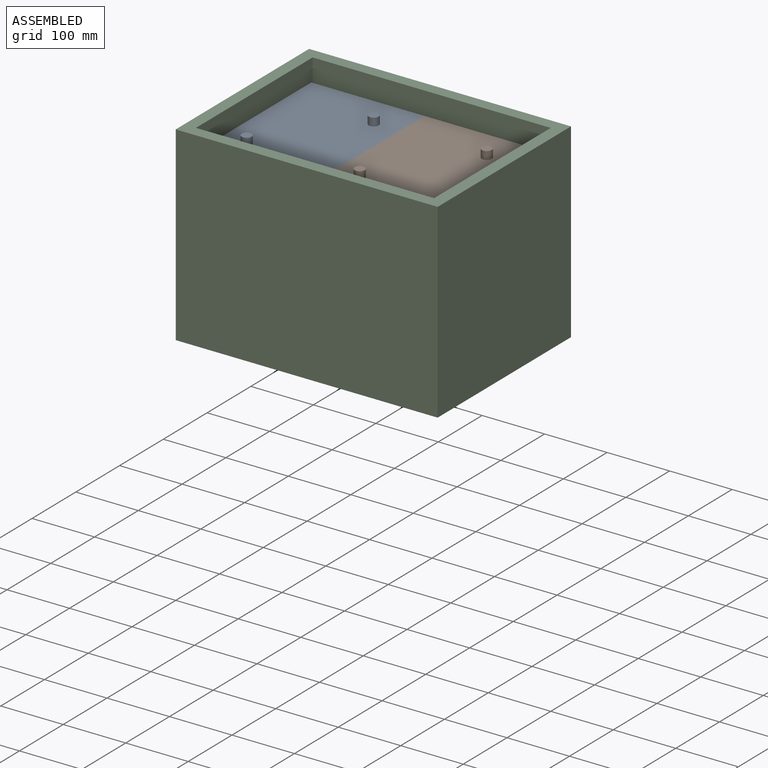
[diagram: assembled view]
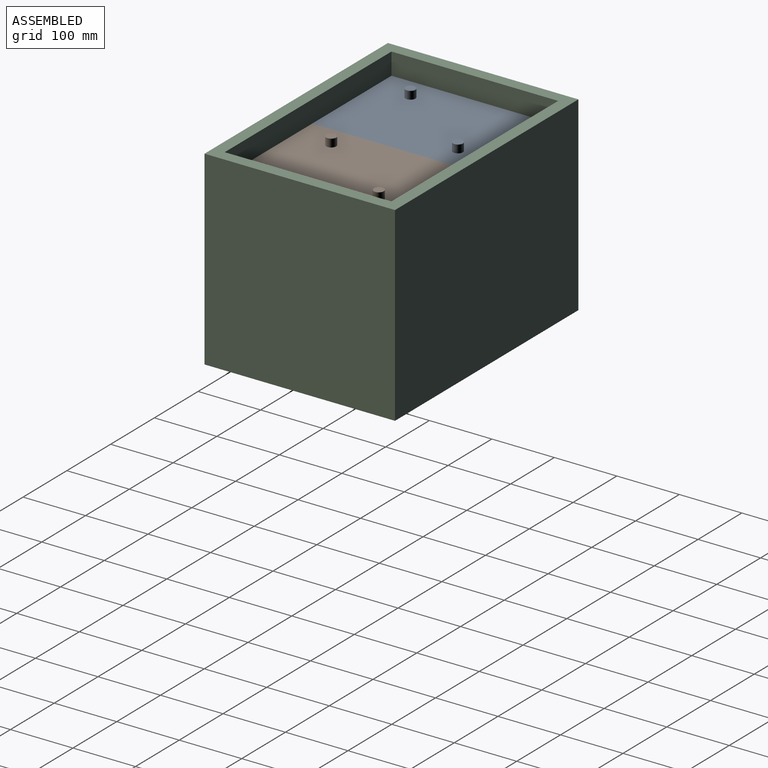
[diagram: assembled view, second angle]
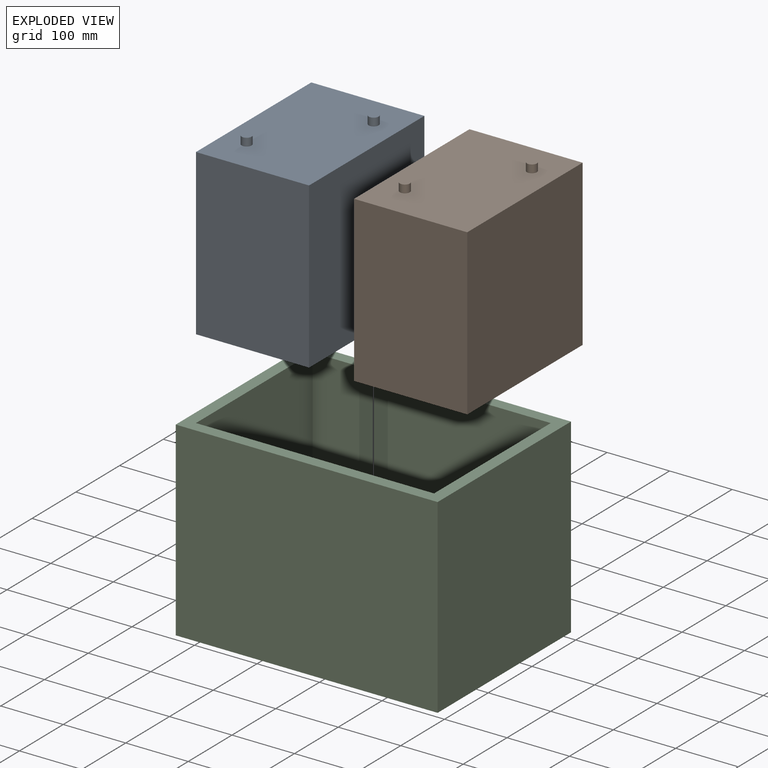
[diagram: exploded view]
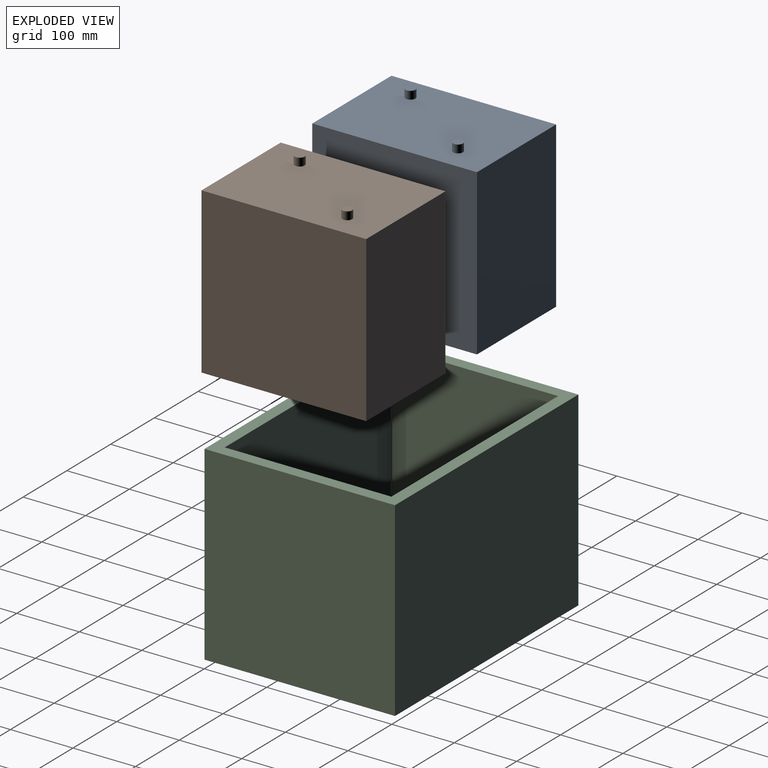
[diagram: exploded view, second angle]
ASSEMBLY  parts=3 mates=2
PART A: 10 faces, bbox 263.5x181x276.2 mm
  f0: plane 263.53x180.98mm, normal (-1,0,0), area 47691.4mm2, adj f1,f3,f4,f5
  f1: plane 263.53x263.53mm, normal (0,-1,0), area 69445.4mm2, adj f0,f2,f4,f5
  f2: plane 263.53x180.98mm, normal (1,0,0), area 47691.4mm2, adj f1,f3,f4,f5
  f3: plane 263.53x263.53mm, normal (0,1,0), area 69445.4mm2, adj f0,f2,f4,f5
  f4: plane 263.53x180.98mm, normal (0,0,-1), area 47691.4mm2, adj f0,f1,f2,f3
  f5: plane 263.53x180.98mm, normal (0,0,1), area 47295.6mm2, adj f0,f1,f2,f3,f6,f8
  f6: cylinder r=7.94mm len=15.88mm, axis (0,0,-1), area 633.4mm2, adj f5,f7
  f7: plane 15.88x15.88mm, normal (0,0,1), area 197.9mm2, adj f6
  f8: cylinder r=7.94mm len=15.88mm, axis (0,0,-1), area 633.4mm2, adj f5,f9
  f9: plane 15.88x15.88mm, normal (0,0,1), area 197.9mm2, adj f8
PART B: same geometry as A
PART C: 11 faces, bbox 419.1x304.8x304.8 mm
  f0: plane 304.8x304.8mm, normal (-1,0,0), area 92903mm2, adj f1,f7,f8,f10
  f1: plane 419.1x304.8mm, normal (0,-1,0), area 127741.7mm2, adj f0,f2,f8,f10
  f2: plane 304.8x304.8mm, normal (1,0,0), area 92903mm2, adj f1,f7,f8,f10
  f3: plane 381x298.45mm, normal (0,1,0), area 113709.4mm2, adj f4,f6,f8,f9
  f4: plane 298.45x266.7mm, normal (1,0,0), area 79596.6mm2, adj f3,f5,f8,f9
  f5: plane 381x298.45mm, normal (0,-1,0), area 113709.4mm2, adj f4,f6,f8,f9
  f6: plane 298.45x266.7mm, normal (-1,0,0), area 79596.6mm2, adj f3,f5,f8,f9
  f7: plane 419.1x304.8mm, normal (0,1,0), area 127741.7mm2, adj f0,f2,f8,f10
  f8: plane 419.1x304.8mm, normal (0,0,1), area 26129mm2, adj f0,f1,f2,f3,f4,f5,f6,f7
  f9: plane 381x266.7mm, normal (0,0,1), area 101612.7mm2, adj f3,f4,f5,f6
  f10: plane 419.1x304.8mm, normal (0,0,-1), area 127741.7mm2, adj f0,f1,f2,f7
PLACE A rot(axis=(0,0,-1),90deg) t=(-117.12,46,203.68)mm
PLACE B rot(axis=(0,0,-1),90deg) t=(63.86,46,203.68)mm
PLACE C t=(-17.1,47.59,-59.85)mm fixed
MATE fastened A.f4 <-> C.f9  axis (0,0,1) through (-207.6,-85.76,-59.85)mm
MATE fastened A.f3 <-> B.f1  axis (1,0,0) through (-26.63,-85.76,-59.85)mm
